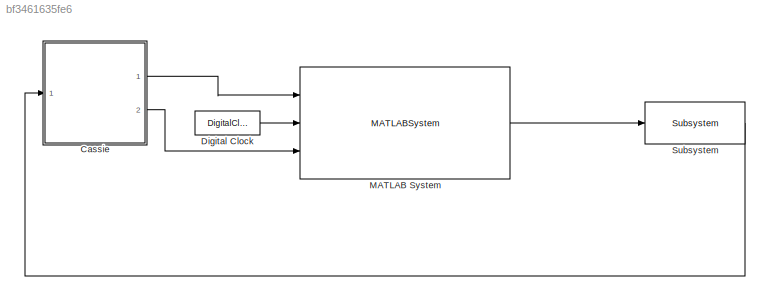
MODEL slx_bf3461635fe6
KIND model
CONFIG AbsTol = auto
CONFIG EnableMultiTasking = on
CONFIG FixedStep = 0.0005
CONFIG InitFcn = isSim = 1;\nPreFunctions.CustomInitFcn;\nPreFunctions.simulationInitFcn
CONFIG MaxStep = auto
CONFIG MinStep = auto
CONFIG RelTol = auto
CONFIG SampleTimeConstraint = Unconstrained
CONFIG Solver = VariableStepAuto
CONFIG SolverName = VariableStepAuto
CONFIG StartTime = 0
CONFIG StopTime = 200
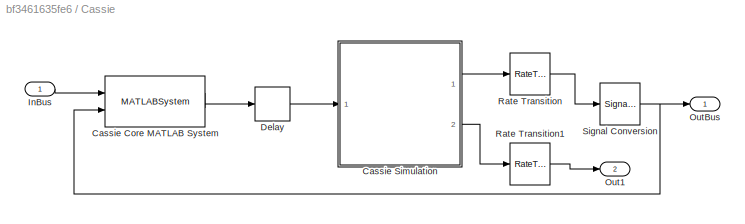
BLOCK [SubSystem] Cassie
  AncestorBlock = CassieLibrary/Simulation/Cassie
  InitFcn = % Start clock at initialization (used for computing real time performance)\ninitTime = tic;\n\n% Import bus definitions\nCassieModule.importBuses;
  Ports = [1, 2]
  RequestExecContextInheritance = off
  StartFcn = % Store build time\nbuildTime = toc(initTime);
  StopFcn = % Store computation time\ncomputationTime = toc(initTime) - buildTime;\n\n% Get simulation time\nsimulationTime = get_param(bdroot, 'SimulationTime');\n\n% Compute real time performance\npercentRealTime = 100*simulationTime/computationTime;\n\n% Display\nfprintf('Build time: %0.2f seconds \n', buildTime);\nfprintf('Simulation time: %0.2f seconds \n', simulationTime);\nfprintf('Computation time: %0.2f seconds ...<+85ch>
  Variant = off
BLOCK [MATLABSystem] Cassie/Cassie Core MATLAB System
  MaskDisplay = disp('CassieCoreSim');
  MaskType = CassieCoreSim
  Ports = [2, 2]
  SimulateUsing = Code generation
  System = CassieCoreSim
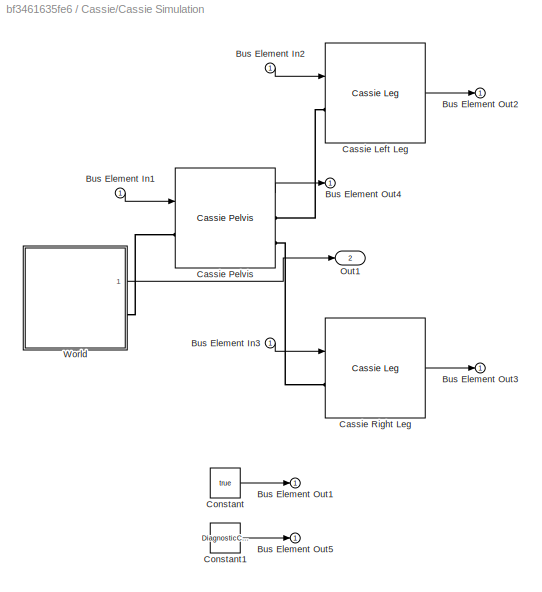
BLOCK [SubSystem] Cassie/Cassie Simulation
  AncestorBlock = CassieLibrary/Simulation/Cassie Simulation
  Ports = [1, 2]
  RequestExecContextInheritance = off
  ShowPortLabels = none
  Variant = off
BLOCK [Inport] Cassie/Cassie Simulation/Bus Element In1
  IconDisplay = Port number
BLOCK [Inport] Cassie/Cassie Simulation/Bus Element In2
  IconDisplay = Port number
BLOCK [Inport] Cassie/Cassie Simulation/Bus Element In3
  IconDisplay = Port number
BLOCK [Outport] Cassie/Cassie Simulation/Bus Element Out1
  IconDisplay = Port number
BLOCK [Outport] Cassie/Cassie Simulation/Bus Element Out2
  IconDisplay = Port number
BLOCK [Outport] Cassie/Cassie Simulation/Bus Element Out3
  IconDisplay = Port number
BLOCK [Outport] Cassie/Cassie Simulation/Bus Element Out4
  IconDisplay = Port number
BLOCK [Outport] Cassie/Cassie Simulation/Bus Element Out5
  IconDisplay = Port number
BLOCK [Reference] Cassie/Cassie Simulation/Cassie Left Leg  REF=CassieLibrary/Simulation/Cassie Leg
  Ports = [1, 1, 0, 0, 0, 1]
  SourceBlock = CassieLibrary/Simulation/Cassie Leg
BLOCK [Reference] Cassie/Cassie Simulation/Cassie Pelvis  REF=CassieLibrary/Simulation/Cassie Pelvis
  Ports = [1, 1, 0, 0, 0, 1, 2]
  SourceBlock = CassieLibrary/Simulation/Cassie Pelvis
BLOCK [Reference] Cassie/Cassie Simulation/Cassie Right Leg  REF=CassieLibrary/Simulation/Cassie Leg
  Ports = [1, 1, 0, 0, 0, 1]
  SourceBlock = CassieLibrary/Simulation/Cassie Leg
BLOCK [Constant] Cassie/Cassie Simulation/Constant
  Value = true
BLOCK [Constant] Cassie/Cassie Simulation/Constant1
  Value = DiagnosticCodes(zeros(4,1))
BLOCK [Outport] Cassie/Cassie Simulation/Out1
  IconDisplay = Port number
  Port = 2
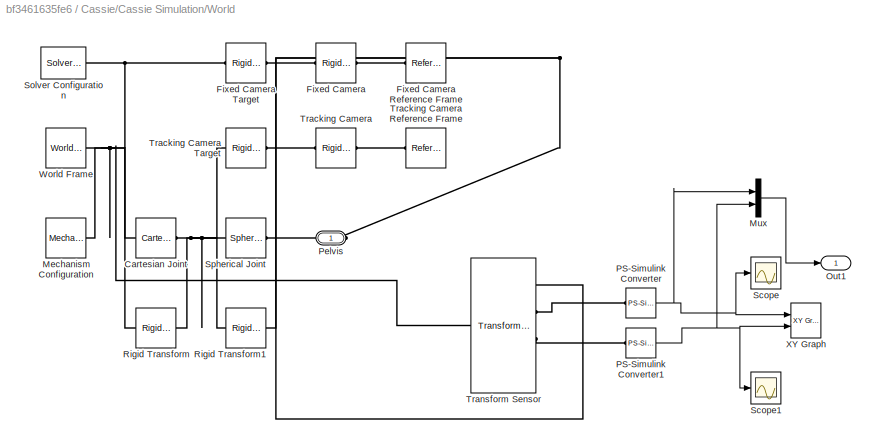
BLOCK [SubSystem] Cassie/Cassie Simulation/World
  AncestorBlock = ComponentLibrary/Simulation/World
  Ports = [0, 1, 0, 0, 0, 0, 1]
  RequestExecContextInheritance = off
  Variant = off
BLOCK [Reference] Cassie/Cassie Simulation/World/Cartesian Joint  REF=sm_lib/Joints/Cartesian
Joint
  Ports = [0, 0, 0, 0, 0, 1, 1]
  SourceBlock = sm_lib/Joints/Cartesian\nJoint
  SourceProductBaseCode = MS
  SourceProductName = Simscape Multibody
  SourceType = Cartesian\nJoint
BLOCK [Reference] Cassie/Cassie Simulation/World/Fixed Camera  REF=sm_lib/Frames and
Transforms/Rigid
Transform
  Ports = [0, 0, 0, 0, 0, 1, 1]
  SourceBlock = sm_lib/Frames and\nTransforms/Rigid\nTransform
  SourceProductBaseCode = MS
  SourceProductName = Simscape Multibody
  SourceType = Rigid\nTransform
BLOCK [Reference] Cassie/Cassie Simulation/World/Fixed Camera Reference Frame  REF=sm_lib/Frames and
Transforms/Reference
Frame
  Ports = [0, 0, 0, 0, 0, 0, 1]
  SourceBlock = sm_lib/Frames and\nTransforms/Reference\nFrame
  SourceProductBaseCode = MS
  SourceProductName = Simscape Multibody
  SourceType = Reference\nFrame
BLOCK [Reference] Cassie/Cassie Simulation/World/Fixed Camera Target  REF=sm_lib/Frames and
Transforms/Rigid
Transform
  Ports = [0, 0, 0, 0, 0, 1, 1]
  SourceBlock = sm_lib/Frames and\nTransforms/Rigid\nTransform
  SourceProductBaseCode = MS
  SourceProductName = Simscape Multibody
  SourceType = Rigid\nTransform
BLOCK [Reference] Cassie/Cassie Simulation/World/Mechanism Configuration  REF=sm_lib/Utilities/Mechanism
Configuration
  Ports = [0, 0, 0, 0, 0, 0, 1]
  SourceBlock = sm_lib/Utilities/Mechanism\nConfiguration
  SourceProductBaseCode = MS
  SourceProductName = Simscape Multibody
  SourceType = Mechanism\nConfiguration
BLOCK [Mux] Cassie/Cassie Simulation/World/Mux
  DisplayOption = bar
  Inputs = 2
  Ports = [2, 1]
BLOCK [Outport] Cassie/Cassie Simulation/World/Out1
  IconDisplay = Port number
BLOCK [Reference] Cassie/Cassie Simulation/World/PS-Simulink Converter  REF=nesl_utility/PS-Simulink
Converter
  Ports = [0, 1, 0, 0, 0, 1]
  SourceBlock = nesl_utility/PS-Simulink\nConverter
  SourceProductBaseCode = SS
  SourceProductName = Simscape
  SourceType = PS-Simulink\nConverter
BLOCK [Reference] Cassie/Cassie Simulation/World/PS-Simulink Converter1  REF=nesl_utility/PS-Simulink
Converter
  Ports = [0, 1, 0, 0, 0, 1]
  SourceBlock = nesl_utility/PS-Simulink\nConverter
  SourceProductBaseCode = SS
  SourceProductName = Simscape
  SourceType = PS-Simulink\nConverter
BLOCK [PMIOPort] Cassie/Cassie Simulation/World/Pelvis
  Port = 1
  Side = Right
BLOCK [Reference] Cassie/Cassie Simulation/World/Rigid Transform  REF=sm_lib/Frames and
Transforms/Rigid
Transform
  Commented = on
  Ports = [0, 0, 0, 0, 0, 1, 1]
  SourceBlock = sm_lib/Frames and\nTransforms/Rigid\nTransform
  SourceProductBaseCode = MS
  SourceProductName = Simscape Multibody
  SourceType = Rigid\nTransform
BLOCK [Reference] Cassie/Cassie Simulation/World/Rigid Transform1  REF=sm_lib/Frames and
Transforms/Rigid
Transform
  Commented = on
  Ports = [0, 0, 0, 0, 0, 1, 1]
  SourceBlock = sm_lib/Frames and\nTransforms/Rigid\nTransform
  SourceProductBaseCode = MS
  SourceProductName = Simscape Multibody
  SourceType = Rigid\nTransform
BLOCK [Scope] Cassie/Cassie Simulation/World/Scope
  NumInputPorts = 1
  Ports = [1]
  ScopeSpecificationString = Simulink.scopes.TimeScopeBlockCfg('CurrentConfiguration', extmgr.ConfigurationSet(extmgr.Configuration('Core','General UI',true),extmgr.Configuration('Core','Source UI',true),extmgr.Configuration('Sources','WiredSimulink',true),extmgr.Configuration('Visuals','Time Domain',true,'SerializedDisplays',{struct('MinYLimReal','-0.8124','MaxYLimReal','5.19006','YLabelReal','','MinYLimMag','0.00000','MaxYL...<+1411ch>
BLOCK [Scope] Cassie/Cassie Simulation/World/Scope1
  NumInputPorts = 1
  Ports = [1]
  ScopeSpecificationString = Simulink.scopes.TimeScopeBlockCfg('CurrentConfiguration', extmgr.ConfigurationSet(extmgr.Configuration('Core','General UI',true),extmgr.Configuration('Core','Source UI',true),extmgr.Configuration('Sources','WiredSimulink',true,'DataLoggingVariableName','ScopeData1'),extmgr.Configuration('Visuals','Time Domain',true,'SerializedDisplays',{struct('MinYLimReal','-0.06618','MaxYLimReal','0.37314','YLab...<+1488ch>
BLOCK [Reference] Cassie/Cassie Simulation/World/Solver Configuration  REF=nesl_utility/Solver
Configuration
  Ports = [0, 0, 0, 0, 0, 0, 1]
  SourceBlock = nesl_utility/Solver\nConfiguration
  SourceProductBaseCode = SS
  SourceProductName = Simscape
  SourceType = Solver\nConfiguration
BLOCK [Reference] Cassie/Cassie Simulation/World/Spherical Joint  REF=sm_lib/Joints/Spherical
Joint
  Ports = [0, 0, 0, 0, 0, 1, 1]
  SourceBlock = sm_lib/Joints/Spherical\nJoint
  SourceProductBaseCode = MS
  SourceProductName = Simscape Multibody
  SourceType = Spherical\nJoint
BLOCK [Reference] Cassie/Cassie Simulation/World/Tracking Camera  REF=sm_lib/Frames and
Transforms/Rigid
Transform
  Ports = [0, 0, 0, 0, 0, 1, 1]
  SourceBlock = sm_lib/Frames and\nTransforms/Rigid\nTransform
  SourceProductBaseCode = MS
  SourceProductName = Simscape Multibody
  SourceType = Rigid\nTransform
BLOCK [Reference] Cassie/Cassie Simulation/World/Tracking Camera Reference Frame  REF=sm_lib/Frames and
Transforms/Reference
Frame
  Ports = [0, 0, 0, 0, 0, 0, 1]
  SourceBlock = sm_lib/Frames and\nTransforms/Reference\nFrame
  SourceProductBaseCode = MS
  SourceProductName = Simscape Multibody
  SourceType = Reference\nFrame
BLOCK [Reference] Cassie/Cassie Simulation/World/Tracking Camera Target  REF=sm_lib/Frames and
Transforms/Rigid
Transform
  Ports = [0, 0, 0, 0, 0, 1, 1]
  SourceBlock = sm_lib/Frames and\nTransforms/Rigid\nTransform
  SourceProductBaseCode = MS
  SourceProductName = Simscape Multibody
  SourceType = Rigid\nTransform
BLOCK [Reference] Cassie/Cassie Simulation/World/Transform Sensor  REF=sm_lib/Frames and
Transforms/Transform
Sensor
  Ports = [0, 0, 0, 0, 0, 1, 4]
  SourceBlock = sm_lib/Frames and\nTransforms/Transform\nSensor
  SourceProductBaseCode = MS
  SourceProductName = Simscape Multibody
  SourceType = Transform\nSensor
BLOCK [Reference] Cassie/Cassie Simulation/World/World Frame  REF=sm_lib/Frames and
Transforms/World Frame
  Ports = [0, 0, 0, 0, 0, 0, 1]
  SourceBlock = sm_lib/Frames and\nTransforms/World Frame
  SourceProductBaseCode = MS
  SourceProductName = Simscape Multibody
  SourceType = World Frame
BLOCK [Reference] Cassie/Cassie Simulation/World/XY Graph  REF=simulink/Sinks/XY Graph
  Ports = [2]
  SourceBlock = simulink/Sinks/XY Graph
  SourceProductBaseCode = SL
  SourceProductName = Simulink
  SourceType = XY scope.
BLOCK [Delay] Cassie/Delay
  DelayLength = 1
  InputPortMap = u0
  Ports = [1, 1]
BLOCK [Inport] Cassie/InBus
  IconDisplay = Port number
  OutDataTypeStr = Bus: CassieUserInBus
BLOCK [Outport] Cassie/Out1
  IconDisplay = Port number
  Port = 2
BLOCK [Outport] Cassie/OutBus
  IconDisplay = Port number
  OutDataTypeStr = Bus: CassieOutBus
BLOCK [RateTransition] Cassie/Rate Transition
  OutPortSampleTime = 0.0005
BLOCK [RateTransition] Cassie/Rate Transition1
  OutPortSampleTime = 0.0005
BLOCK [SignalConversion] Cassie/Signal Conversion
  ConversionOutput = Nonvirtual bus
  OutDataTypeStr = Bus: CassieOutBus
  OverrideOpt = off
BLOCK [DigitalClock] Digital Clock
  SampleTime = UserParams.SampleTime
BLOCK [MATLABSystem] MATLAB System
  MaskDisplay = disp('RemoteSpoofer');\nport_label('input',1,'cassieOutputs');\nport_label('input',2,'t');\nport_label('input',3,'position_input');\nport_label('output',1,'cassieOutputs');
  MaskType = RemoteSpoofer
  Ports = [3, 1]
  SimulateUsing = Interpreted execution
  System = RemoteSpoofer
BLOCK [Reference] Subsystem  REF=FG_Controller_Library/Subsystem
  Ports = [1, 1]
  SourceBlock = FG_Controller_Library/Subsystem
  SourceType = SubSystem
LINE Cassie:1 -> MATLAB System:1
LINE Cassie:2 -> MATLAB System:3
LINE Digital Clock:1 -> MATLAB System:2
LINE MATLAB System:1 -> Subsystem:1
LINE Subsystem:1 -> Cassie:1
